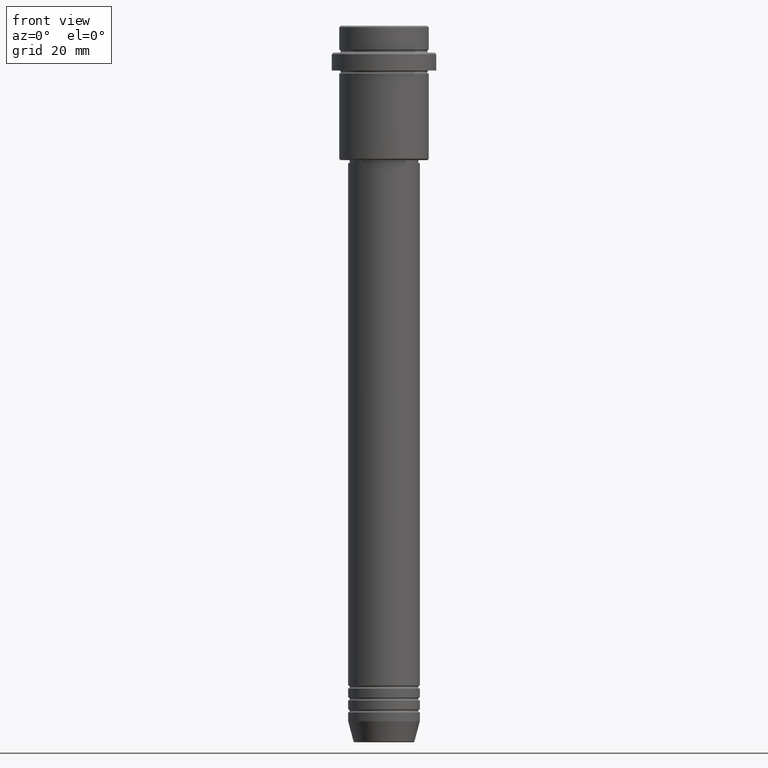
[diagram: clean part render]
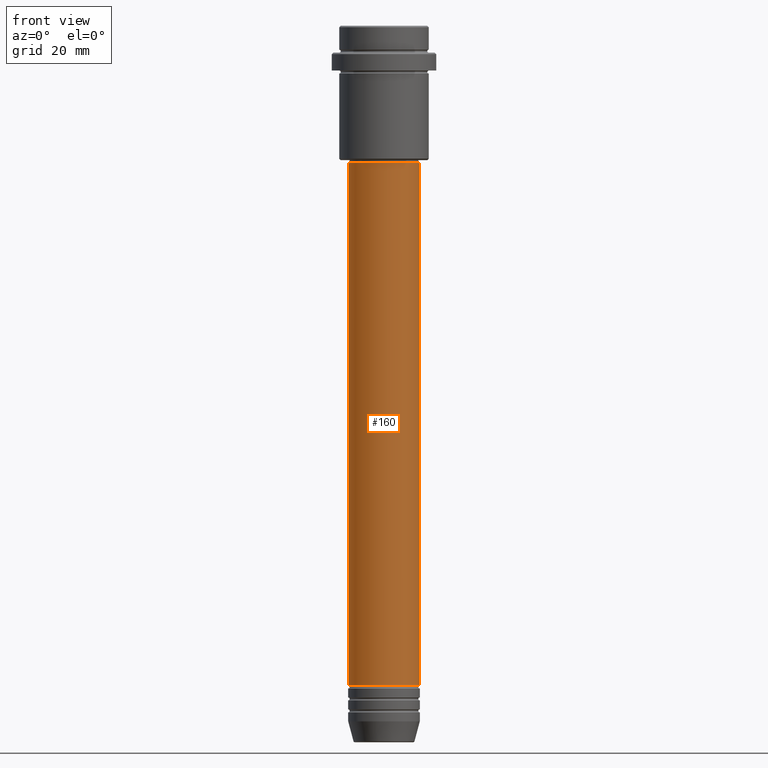
[diagram: same view with one face highlighted and labeled with its STEP entity id]
A machine part, front view. The second image highlights one B-rep face of the part: STEP entity #160.
In plain terms, the highlighted cylindrical surface (edge-blend (fillet) strip) has radius 12 mm, axis along (-0, -0, 1).
Its self-contained STEP definition (entity closure, byte-faithful):
#22 = CARTESIAN_POINT ( 'NONE',  ( 0.000000000000000000, 0.000000000000000000, -220.9999999999999432 ) ) ;
#92 = CYLINDRICAL_SURFACE ( 'NONE', #484, 12.00000000000000000 ) ;
#96 = ORIENTED_EDGE ( 'NONE', *, *, #1115, .F. ) ;
#105 = DIRECTION ( 'NONE',  ( 1.000000000000000000, 0.000000000000000000, 0.000000000000000000 ) ) ;
#160 = ADVANCED_FACE ( 'NONE', ( #1202 ), #92, .T. ) ;
#197 = VERTEX_POINT ( 'NONE', #219 ) ;
#208 = CIRCLE ( 'NONE', #1400, 11.99999999999999822 ) ;
#213 = EDGE_CURVE ( 'NONE', #1237, #757, #363, .T. ) ;
#219 = CARTESIAN_POINT ( 'NONE',  ( -11.99999999999999822, 1.469576158976823750E-15, -46.00000000000002132 ) ) ;
#257 = VECTOR ( 'NONE', #1228, 1000.000000000000000 ) ;
#314 = CARTESIAN_POINT ( 'NONE',  ( 0.000000000000000000, 0.000000000000000000, 0.000000000000000000 ) ) ;
#363 = LINE ( 'NONE', #1209, #257 ) ;
#380 = ORIENTED_EDGE ( 'NONE', *, *, #213, .T. ) ;
#427 = VERTEX_POINT ( 'NONE', #501 ) ;
#454 = DIRECTION ( 'NONE',  ( -0.000000000000000000, -0.000000000000000000, 1.000000000000000000 ) ) ;
#484 = AXIS2_PLACEMENT_3D ( 'NONE', #314, #753, #764 ) ;
#491 = EDGE_CURVE ( 'NONE', #197, #757, #208, .T. ) ;
#501 = CARTESIAN_POINT ( 'NONE',  ( -12.00000000000000000, 1.469576158976823947E-15, -220.9999999999999432 ) ) ;
#525 = DIRECTION ( 'NONE',  ( -0.000000000000000000, -0.000000000000000000, 1.000000000000000000 ) ) ;
#539 = EDGE_LOOP ( 'NONE', ( #96, #726, #380, #1179 ) ) ;
#726 = ORIENTED_EDGE ( 'NONE', *, *, #1186, .T. ) ;
#753 = DIRECTION ( 'NONE',  ( -0.000000000000000000, -0.000000000000000000, 1.000000000000000000 ) ) ;
#757 = VERTEX_POINT ( 'NONE', #1250 ) ;
#762 = LINE ( 'NONE', #998, #1361 ) ;
#764 = DIRECTION ( 'NONE',  ( 1.000000000000000000, 0.000000000000000000, 0.000000000000000000 ) ) ;
#958 = DIRECTION ( 'NONE',  ( 1.000000000000000000, 0.000000000000000000, 0.000000000000000000 ) ) ;
#966 = CARTESIAN_POINT ( 'NONE',  ( 0.000000000000000000, 0.000000000000000000, -46.00000000000002132 ) ) ;
#998 = CARTESIAN_POINT ( 'NONE',  ( -12.00000000000000000, 1.469576158976823947E-15, 0.000000000000000000 ) ) ;
#1042 = CARTESIAN_POINT ( 'NONE',  ( 12.00000000000000000, 0.000000000000000000, -220.9999999999999432 ) ) ;
#1115 = EDGE_CURVE ( 'NONE', #427, #197, #762, .T. ) ;
#1179 = ORIENTED_EDGE ( 'NONE', *, *, #491, .F. ) ;
#1186 = EDGE_CURVE ( 'NONE', #427, #1237, #1221, .T. ) ;
#1202 = FACE_OUTER_BOUND ( 'NONE', #539, .T. ) ;
#1209 = CARTESIAN_POINT ( 'NONE',  ( 12.00000000000000000, 0.000000000000000000, 0.000000000000000000 ) ) ;
#1221 = CIRCLE ( 'NONE', #1339, 12.00000000000000000 ) ;
#1228 = DIRECTION ( 'NONE',  ( -0.000000000000000000, -0.000000000000000000, 1.000000000000000000 ) ) ;
#1237 = VERTEX_POINT ( 'NONE', #1042 ) ;
#1250 = CARTESIAN_POINT ( 'NONE',  ( 11.99999999999999822, 0.000000000000000000, -46.00000000000002132 ) ) ;
#1319 = DIRECTION ( 'NONE',  ( -0.000000000000000000, -0.000000000000000000, 1.000000000000000000 ) ) ;
#1339 = AXIS2_PLACEMENT_3D ( 'NONE', #22, #454, #105 ) ;
#1361 = VECTOR ( 'NONE', #1319, 1000.000000000000000 ) ;
#1400 = AXIS2_PLACEMENT_3D ( 'NONE', #966, #525, #958 ) ;